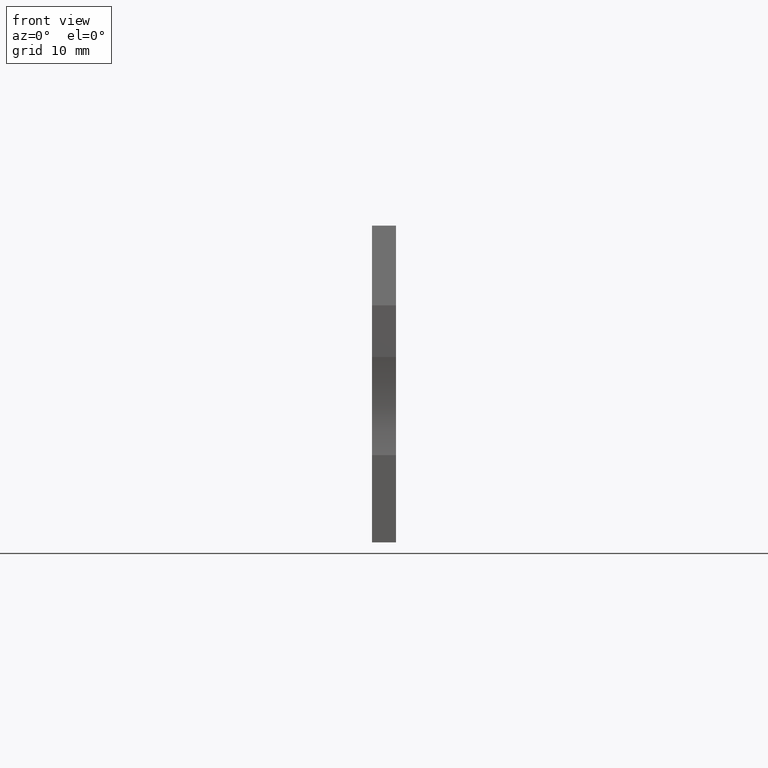
[diagram: clean part render]
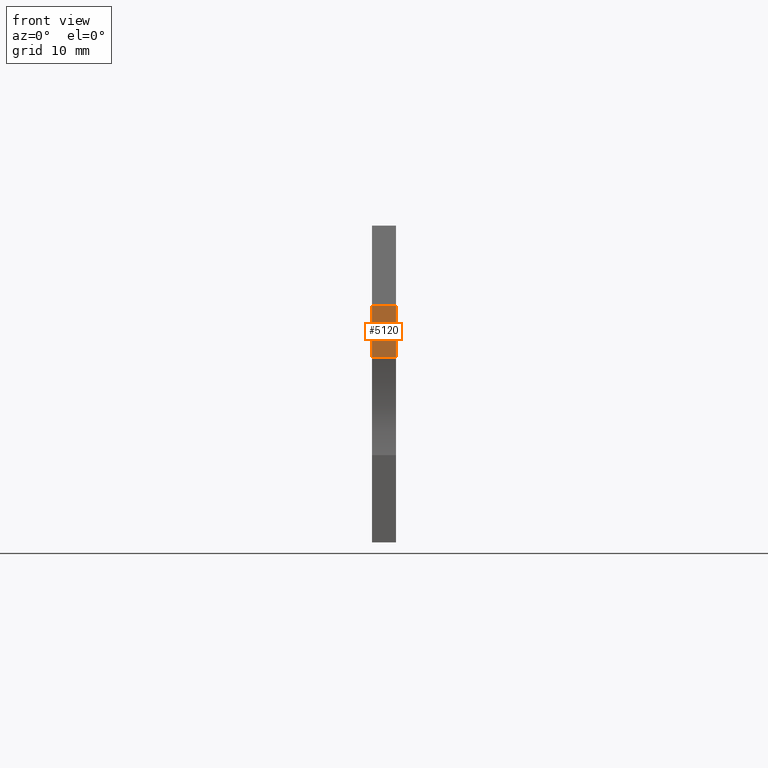
[diagram: same view with one face highlighted and labeled with its STEP entity id]
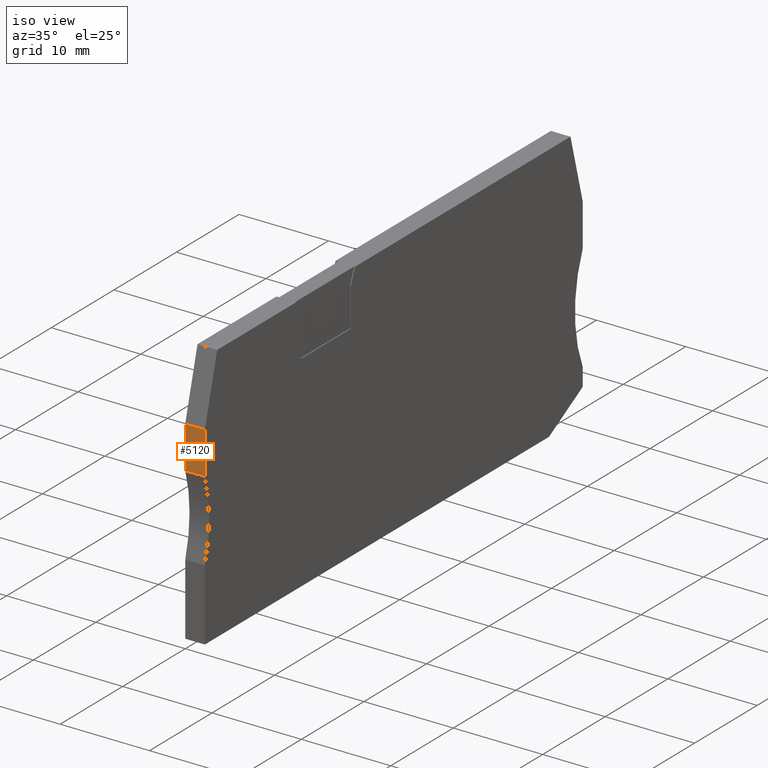
[diagram: same view with one face highlighted and labeled with its STEP entity id]
A machine part, front view. The second image highlights one B-rep face of the part: STEP entity #5120.
A second angle (iso view) of the same face is appended — the face is thin or edge-on in the first view.
In plain terms, the highlighted planar face has unit normal (0, -1, 0).
Its self-contained STEP definition (entity closure, byte-faithful):
#120=CARTESIAN_POINT('',(-22.367832778321,-16.4655444566073,53.17));
#130=VERTEX_POINT('',#120);
#160=CARTESIAN_POINT('',(-22.367832778321,-12.1300507694245,53.17));
#170=DIRECTION('',(0.,-1.,0.));
#180=VECTOR('',#170,1.);
#190=LINE('',#160,#180);
#200=CARTESIAN_POINT('',(-22.367832778321,-21.2000000000008,53.17));
#210=VERTEX_POINT('',#200);
#220=EDGE_CURVE('',#130,#210,#190,.T.);
#2670=CARTESIAN_POINT('',(-22.367832778321,-21.2000000000008,55.37));
#2680=VERTEX_POINT('',#2670);
#2710=CARTESIAN_POINT('',(-22.367832778321,-12.1300507694245,55.37));
#2720=DIRECTION('',(0.,1.,0.));
#2730=VECTOR('',#2720,1.);
#2740=LINE('',#2710,#2730);
#2750=CARTESIAN_POINT('',(-22.367832778321,-16.4655444566073,55.37));
#2760=VERTEX_POINT('',#2750);
#2770=EDGE_CURVE('',#2680,#2760,#2740,.T.);
#4910=CARTESIAN_POINT('',(-22.367832778321,-16.5313707054011,55.37));
#4920=DIRECTION('',(-1.,0.,0.));
#4930=DIRECTION('',(0.,1.,0.));
#4940=AXIS2_PLACEMENT_3D('',#4910,#4920,#4930);
#4950=PLANE('',#4940);
#4960=CARTESIAN_POINT('',(-22.367832778321,-21.2000000000008,55.37));
#4970=DIRECTION('',(0.,0.,1.));
#4980=VECTOR('',#4970,1.);
#4990=LINE('',#4960,#4980);
#5000=EDGE_CURVE('',#210,#2680,#4990,.T.);
#5010=ORIENTED_EDGE('',*,*,#5000,.T.);
#5020=ORIENTED_EDGE('',*,*,#220,.T.);
#5030=CARTESIAN_POINT('',(-22.367832778321,-16.4655444566073,53.17));
#5040=DIRECTION('',(0.,0.,1.));
#5050=VECTOR('',#5040,1.);
#5060=LINE('',#5030,#5050);
#5070=EDGE_CURVE('',#130,#2760,#5060,.T.);
#5080=ORIENTED_EDGE('',*,*,#5070,.F.);
#5090=ORIENTED_EDGE('',*,*,#2770,.T.);
#5100=EDGE_LOOP('',(#5090,#5080,#5020,#5010));
#5110=FACE_OUTER_BOUND('',#5100,.T.);
#5120=ADVANCED_FACE('',(#5110),#4950,.T.);